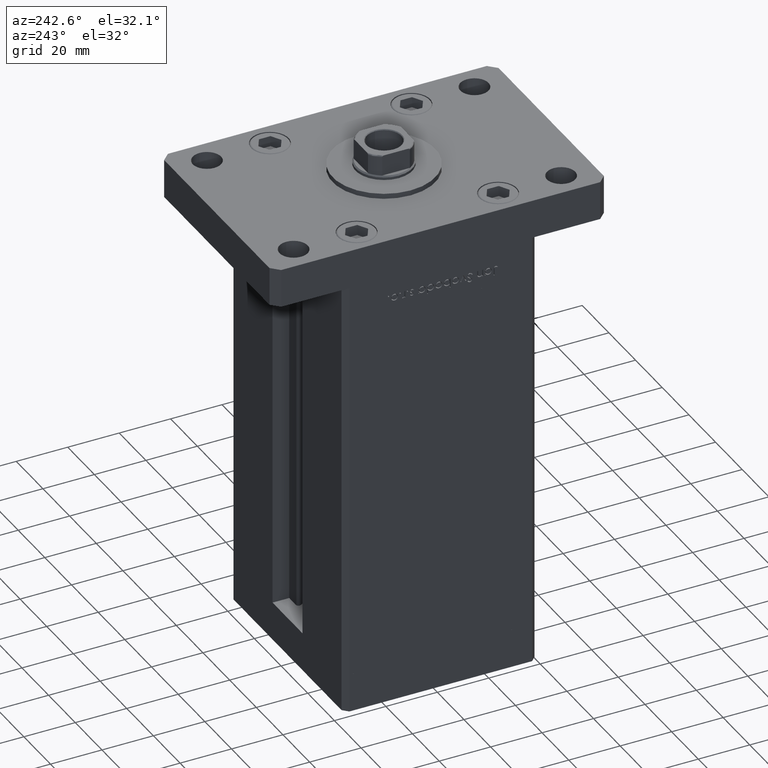
[diagram: clean part render]
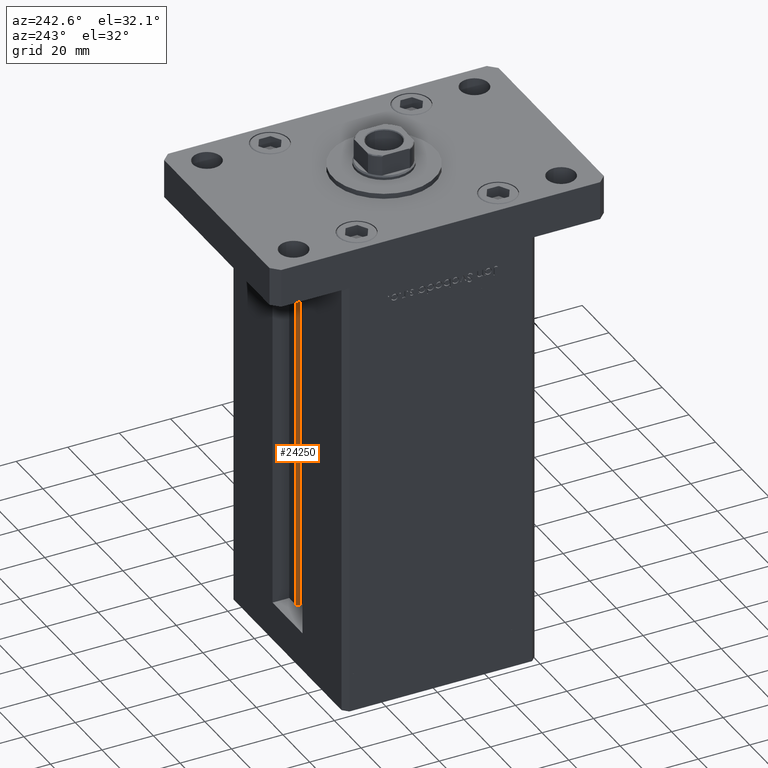
[diagram: same view with one face highlighted and labeled with its STEP entity id]
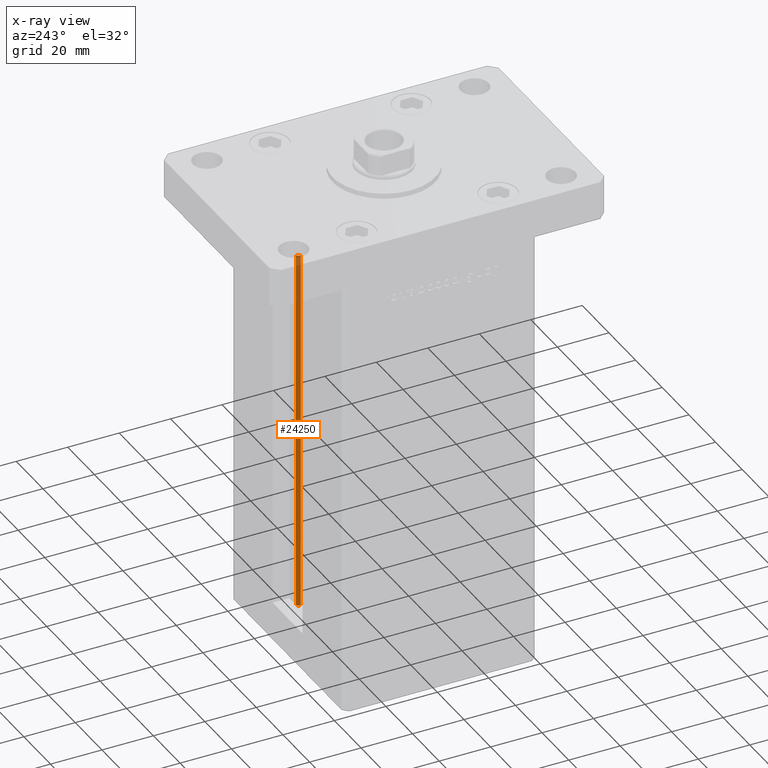
[diagram: x-ray of the same camera — body ghosted, the highlighted face saturated]
A machine part, auxiliary view. The second image highlights one B-rep face of the part: STEP entity #24250.
The next image is the same camera in x-ray: the body ghosted, the highlighted face saturated — about 13% of this face is hidden behind the body in this view.
In plain terms, the highlighted cylindrical surface (edge-blend (fillet) strip) has radius 0.9333 mm, axis along (0, 0, 1).
Its self-contained STEP definition (entity closure, byte-faithful):
#1756 = CARTESIAN_POINT ( 'NONE',  ( 5.375042956467943611, 29.59999999999899245, 0.000000000000000000 ) ) ;
#2856 = CIRCLE ( 'NONE', #9775, 0.9333333333340015914 ) ;
#3318 = VECTOR ( 'NONE', #27121, 1000.000000000000000 ) ;
#6867 = CARTESIAN_POINT ( 'NONE',  ( 5.375042956467944499, 29.59999999999898890, 142.5000000000000000 ) ) ;
#7715 = EDGE_LOOP ( 'NONE', ( #47182, #17116, #30923, #21114 ) ) ;
#8402 = EDGE_CURVE ( 'NONE', #23385, #38042, #22634, .T. ) ;
#9036 = DIRECTION ( 'NONE',  ( 1.000000000000000000, 0.000000000000000000, 0.000000000000000000 ) ) ;
#9775 = AXIS2_PLACEMENT_3D ( 'NONE', #12518, #47126, #43063 ) ;
#12518 = CARTESIAN_POINT ( 'NONE',  ( 6.183333333333999704, 30.06666666666599141, 0.000000000000000000 ) ) ;
#16188 = FACE_OUTER_BOUND ( 'NONE', #7715, .T. ) ;
#17116 = ORIENTED_EDGE ( 'NONE', *, *, #44022, .F. ) ;
#18512 = DIRECTION ( 'NONE',  ( 0.000000000000000000, 0.000000000000000000, -1.000000000000000000 ) ) ;
#18649 = CARTESIAN_POINT ( 'NONE',  ( 6.183333333333999704, 30.99999999999999289, 142.5000000000000000 ) ) ;
#21114 = ORIENTED_EDGE ( 'NONE', *, *, #30352, .T. ) ;
#22634 = LINE ( 'NONE', #1756, #39250 ) ;
#23385 = VERTEX_POINT ( 'NONE', #51365 ) ;
#23796 = DIRECTION ( 'NONE',  ( -0.000000000000000000, -0.000000000000000000, 1.000000000000000000 ) ) ;
#24250 = ADVANCED_FACE ( 'NONE', ( #16188 ), #32168, .T. ) ;
#26654 = CARTESIAN_POINT ( 'NONE',  ( 6.183333333333999704, 30.06666666666599141, 142.5000000000000000 ) ) ;
#26710 = DIRECTION ( 'NONE',  ( -0.000000000000000000, -0.000000000000000000, 1.000000000000000000 ) ) ;
#27121 = DIRECTION ( 'NONE',  ( -0.000000000000000000, -0.000000000000000000, 1.000000000000000000 ) ) ;
#27214 = CARTESIAN_POINT ( 'NONE',  ( 6.183333333333999704, 30.99999999999999289, 0.000000000000000000 ) ) ;
#28574 = VERTEX_POINT ( 'NONE', #18649 ) ;
#30352 = EDGE_CURVE ( 'NONE', #38042, #28574, #37041, .T. ) ;
#30711 = EDGE_CURVE ( 'NONE', #35441, #28574, #34956, .T. ) ;
#30923 = ORIENTED_EDGE ( 'NONE', *, *, #8402, .T. ) ;
#32168 = CYLINDRICAL_SURFACE ( 'NONE', #37876, 0.9333333333340015914 ) ;
#32708 = DIRECTION ( 'NONE',  ( 1.000000000000000000, 0.000000000000000000, 0.000000000000000000 ) ) ;
#33606 = AXIS2_PLACEMENT_3D ( 'NONE', #26654, #18512, #9036 ) ;
#34956 = LINE ( 'NONE', #40565, #3318 ) ;
#35441 = VERTEX_POINT ( 'NONE', #27214 ) ;
#37041 = CIRCLE ( 'NONE', #33606, 0.9333333333340015914 ) ;
#37876 = AXIS2_PLACEMENT_3D ( 'NONE', #48464, #23796, #32708 ) ;
#38042 = VERTEX_POINT ( 'NONE', #6867 ) ;
#39250 = VECTOR ( 'NONE', #26710, 1000.000000000000000 ) ;
#40565 = CARTESIAN_POINT ( 'NONE',  ( 6.183333333333999704, 30.99999999999999289, 0.000000000000000000 ) ) ;
#43063 = DIRECTION ( 'NONE',  ( 1.000000000000000000, 0.000000000000000000, 0.000000000000000000 ) ) ;
#44022 = EDGE_CURVE ( 'NONE', #23385, #35441, #2856, .T. ) ;
#47126 = DIRECTION ( 'NONE',  ( -0.000000000000000000, -0.000000000000000000, -1.000000000000000000 ) ) ;
#47182 = ORIENTED_EDGE ( 'NONE', *, *, #30711, .F. ) ;
#48464 = CARTESIAN_POINT ( 'NONE',  ( 6.183333333333999704, 30.06666666666599141, 0.000000000000000000 ) ) ;
#51365 = CARTESIAN_POINT ( 'NONE',  ( 5.375042956467943611, 29.59999999999899245, 0.000000000000000000 ) ) ;